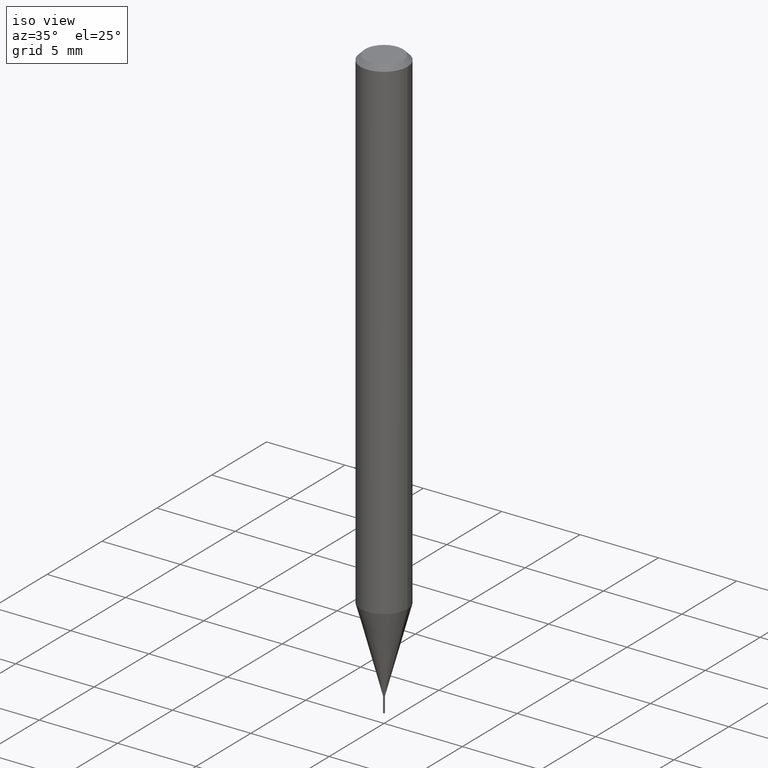
[diagram: clean part render]
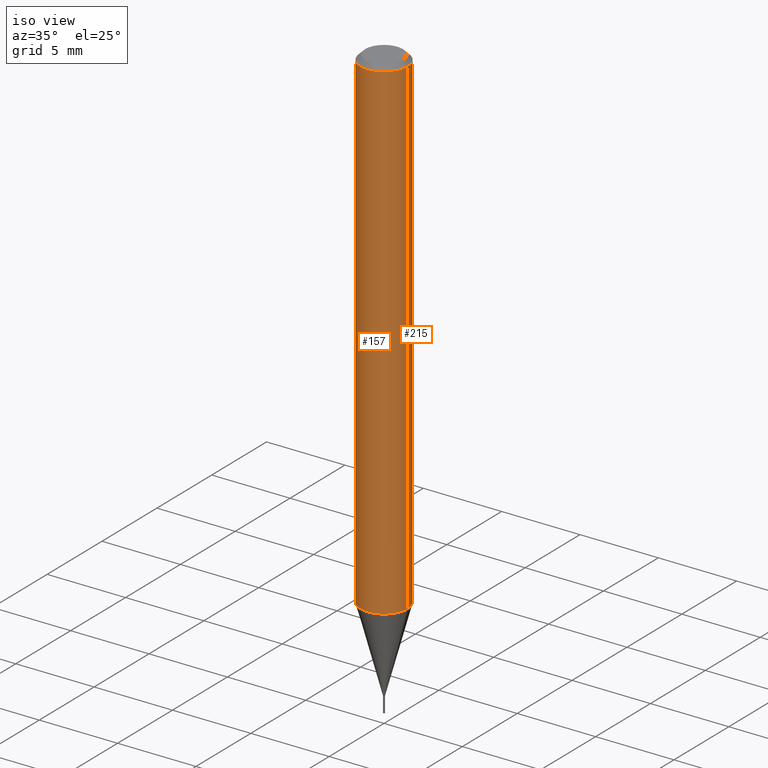
[diagram: same view with one multi-face feature highlighted, each face labeled with its STEP entity id]
A machine part, iso view. The highlighted faces form ONE feature: a constant-radius fillet chain: 2 tangent blend faces with common blend radius 1.4999 mm. The faces share edges in the B-rep.
Their STEP definitions:
[1] entity #157 (Cylinder):
#1 = LINE ( 'NONE', #305, #159 ) ;
#7 = FACE_OUTER_BOUND ( 'NONE', #198, .T. ) ;
#16 = CARTESIAN_POINT ( 'NONE',  ( 0.05905000000000017180, -4.752254897268105035E-15, -1.242999898887816812 ) ) ;
#40 = CARTESIAN_POINT ( 'NONE',  ( 2.888098660104664204E-31, -4.123439461173780263E-17, -0.01181000000000007218 ) ) ;
#61 = CIRCLE ( 'NONE', #101, 0.05905000000000017180 ) ;
#64 = EDGE_CURVE ( 'NONE', #142, #273, #61, .T. ) ;
#92 = VECTOR ( 'NONE', #481, 39.37007874015748143 ) ;
#101 = AXIS2_PLACEMENT_3D ( 'NONE', #255, #337, #403 ) ;
#109 = CARTESIAN_POINT ( 'NONE',  ( 0.000000000000000000, 0.000000000000000000, 0.000000000000000000 ) ) ;
#122 = AXIS2_PLACEMENT_3D ( 'NONE', #109, #377, #448 ) ;
#142 = VERTEX_POINT ( 'NONE', #458 ) ;
#145 = EDGE_CURVE ( 'NONE', #142, #168, #1, .T. ) ;
#157 = ADVANCED_FACE ( 'NONE', ( #7 ), #423, .T. ) ;
#159 = VECTOR ( 'NONE', #350, 39.37007874015748143 ) ;
#168 = VERTEX_POINT ( 'NONE', #380 ) ;
#197 = DIRECTION ( 'NONE',  ( -2.445468806185136597E-29, 3.491481338843145583E-15, 1.000000000000000000 ) ) ;
#198 = EDGE_LOOP ( 'NONE', ( #292, #371, #461, #310 ) ) ;
#199 = CARTESIAN_POINT ( 'NONE',  ( 0.05904999999999999832, -4.535783407291118600E-16, -0.01181000000000007218 ) ) ;
#211 = CIRCLE ( 'NONE', #333, 0.05904999999999999832 ) ;
#213 = VERTEX_POINT ( 'NONE', #199 ) ;
#230 = CARTESIAN_POINT ( 'NONE',  ( 0.05905000000000008159, -4.123439461173746736E-16, 2.879382386107504424E-30 ) ) ;
#232 = EDGE_CURVE ( 'NONE', #168, #213, #211, .T. ) ;
#255 = CARTESIAN_POINT ( 'NONE',  ( 3.039717478821434878E-29, -4.339910951150729326E-15, -1.242999898887816812 ) ) ;
#273 = VERTEX_POINT ( 'NONE', #16 ) ;
#292 = ORIENTED_EDGE ( 'NONE', *, *, #145, .F. ) ;
#305 = CARTESIAN_POINT ( 'NONE',  ( -0.05905000000000008159, 4.195754854663397395E-16, -2.904631170795525745E-30 ) ) ;
#310 = ORIENTED_EDGE ( 'NONE', *, *, #232, .F. ) ;
#333 = AXIS2_PLACEMENT_3D ( 'NONE', #40, #197, #346 ) ;
#337 = DIRECTION ( 'NONE',  ( -2.445468806185136597E-29, 3.491481338843145583E-15, 1.000000000000000000 ) ) ;
#346 = DIRECTION ( 'NONE',  ( 1.000000000000000000, -6.982962677686266711E-15, 0.000000000000000000 ) ) ;
#350 = DIRECTION ( 'NONE',  ( -2.445468806185136877E-29, 3.491481338843145188E-15, 1.000000000000000000 ) ) ;
#371 = ORIENTED_EDGE ( 'NONE', *, *, #64, .T. ) ;
#374 = LINE ( 'NONE', #230, #92 ) ;
#377 = DIRECTION ( 'NONE',  ( -2.445468806185136597E-29, 3.491481338843145583E-15, 1.000000000000000000 ) ) ;
#380 = CARTESIAN_POINT ( 'NONE',  ( -0.05904999999999999832, -1.770997187414892260E-15, -0.01181000000000007218 ) ) ;
#403 = DIRECTION ( 'NONE',  ( 1.000000000000000000, -6.982962677686260400E-15, 0.000000000000000000 ) ) ;
#423 = CYLINDRICAL_SURFACE ( 'NONE', #122, 0.05905000000000008159 ) ;
#448 = DIRECTION ( 'NONE',  ( 1.000000000000000000, -6.982962677686267499E-15, 4.876176775795936353E-29 ) ) ;
#458 = CARTESIAN_POINT ( 'NONE',  ( -0.05905000000000017180, -3.920335465684389833E-15, -1.242999898887816812 ) ) ;
#461 = ORIENTED_EDGE ( 'NONE', *, *, #489, .T. ) ;
#481 = DIRECTION ( 'NONE',  ( -2.445468806185136877E-29, 3.491481338843145188E-15, 1.000000000000000000 ) ) ;
#489 = EDGE_CURVE ( 'NONE', #273, #213, #374, .T. ) ;
[2] entity #215 (Cylinder):
#1 = LINE ( 'NONE', #305, #159 ) ;
#4 = EDGE_LOOP ( 'NONE', ( #396, #474, #289, #187 ) ) ;
#16 = CARTESIAN_POINT ( 'NONE',  ( 0.05905000000000017180, -4.752254897268105035E-15, -1.242999898887816812 ) ) ;
#37 = CARTESIAN_POINT ( 'NONE',  ( 0.000000000000000000, 0.000000000000000000, 0.000000000000000000 ) ) ;
#43 = EDGE_CURVE ( 'NONE', #273, #142, #107, .T. ) ;
#53 = AXIS2_PLACEMENT_3D ( 'NONE', #37, #194, #309 ) ;
#92 = VECTOR ( 'NONE', #481, 39.37007874015748143 ) ;
#107 = CIRCLE ( 'NONE', #149, 0.05905000000000017180 ) ;
#142 = VERTEX_POINT ( 'NONE', #458 ) ;
#145 = EDGE_CURVE ( 'NONE', #142, #168, #1, .T. ) ;
#149 = AXIS2_PLACEMENT_3D ( 'NONE', #445, #180, #332 ) ;
#159 = VECTOR ( 'NONE', #350, 39.37007874015748143 ) ;
#168 = VERTEX_POINT ( 'NONE', #380 ) ;
#180 = DIRECTION ( 'NONE',  ( -2.445468806185136597E-29, 3.491481338843145583E-15, 1.000000000000000000 ) ) ;
#187 = ORIENTED_EDGE ( 'NONE', *, *, #489, .F. ) ;
#194 = DIRECTION ( 'NONE',  ( -2.445468806185136597E-29, 3.491481338843145583E-15, 1.000000000000000000 ) ) ;
#199 = CARTESIAN_POINT ( 'NONE',  ( 0.05904999999999999832, -4.535783407291118600E-16, -0.01181000000000007218 ) ) ;
#206 = EDGE_CURVE ( 'NONE', #213, #168, #464, .T. ) ;
#213 = VERTEX_POINT ( 'NONE', #199 ) ;
#215 = ADVANCED_FACE ( 'NONE', ( #375 ), #240, .T. ) ;
#230 = CARTESIAN_POINT ( 'NONE',  ( 0.05905000000000008159, -4.123439461173746736E-16, 2.879382386107504424E-30 ) ) ;
#234 = AXIS2_PLACEMENT_3D ( 'NONE', #307, #453, #383 ) ;
#240 = CYLINDRICAL_SURFACE ( 'NONE', #53, 0.05905000000000008159 ) ;
#273 = VERTEX_POINT ( 'NONE', #16 ) ;
#289 = ORIENTED_EDGE ( 'NONE', *, *, #206, .F. ) ;
#305 = CARTESIAN_POINT ( 'NONE',  ( -0.05905000000000008159, 4.195754854663397395E-16, -2.904631170795525745E-30 ) ) ;
#307 = CARTESIAN_POINT ( 'NONE',  ( 2.888098660104664204E-31, -4.123439461173780263E-17, -0.01181000000000007218 ) ) ;
#309 = DIRECTION ( 'NONE',  ( 1.000000000000000000, -6.982962677686267499E-15, 4.876176775795936353E-29 ) ) ;
#332 = DIRECTION ( 'NONE',  ( 1.000000000000000000, -6.982962677686260400E-15, 0.000000000000000000 ) ) ;
#350 = DIRECTION ( 'NONE',  ( -2.445468806185136877E-29, 3.491481338843145188E-15, 1.000000000000000000 ) ) ;
#374 = LINE ( 'NONE', #230, #92 ) ;
#375 = FACE_OUTER_BOUND ( 'NONE', #4, .T. ) ;
#380 = CARTESIAN_POINT ( 'NONE',  ( -0.05904999999999999832, -1.770997187414892260E-15, -0.01181000000000007218 ) ) ;
#383 = DIRECTION ( 'NONE',  ( 1.000000000000000000, -6.982962677686266711E-15, 0.000000000000000000 ) ) ;
#396 = ORIENTED_EDGE ( 'NONE', *, *, #43, .T. ) ;
#445 = CARTESIAN_POINT ( 'NONE',  ( 3.039717478821434878E-29, -4.339910951150729326E-15, -1.242999898887816812 ) ) ;
#453 = DIRECTION ( 'NONE',  ( -2.445468806185136597E-29, 3.491481338843145583E-15, 1.000000000000000000 ) ) ;
#458 = CARTESIAN_POINT ( 'NONE',  ( -0.05905000000000017180, -3.920335465684389833E-15, -1.242999898887816812 ) ) ;
#464 = CIRCLE ( 'NONE', #234, 0.05904999999999999832 ) ;
#474 = ORIENTED_EDGE ( 'NONE', *, *, #145, .T. ) ;
#481 = DIRECTION ( 'NONE',  ( -2.445468806185136877E-29, 3.491481338843145188E-15, 1.000000000000000000 ) ) ;
#489 = EDGE_CURVE ( 'NONE', #273, #213, #374, .T. ) ;